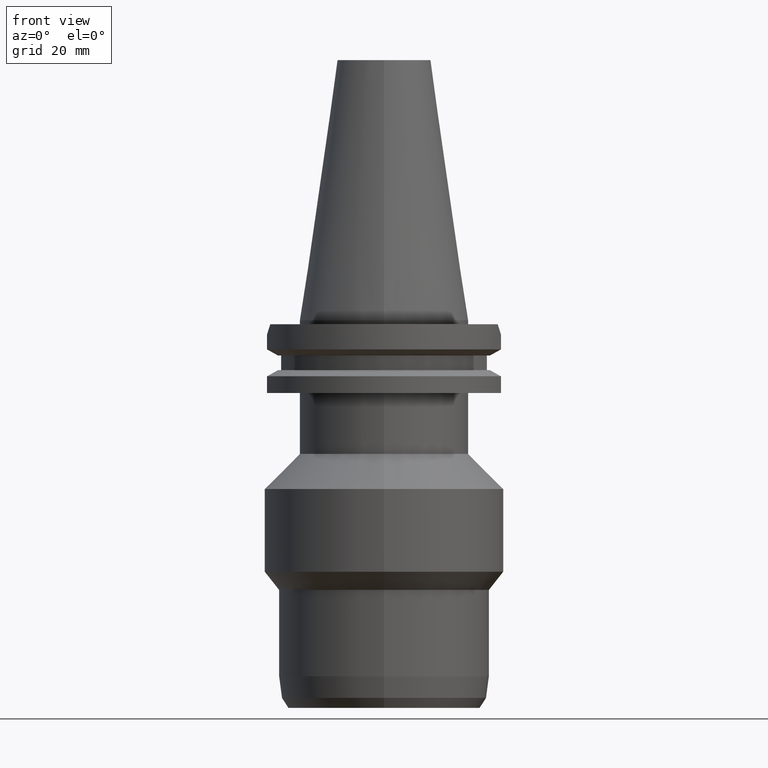
[diagram: clean part render]
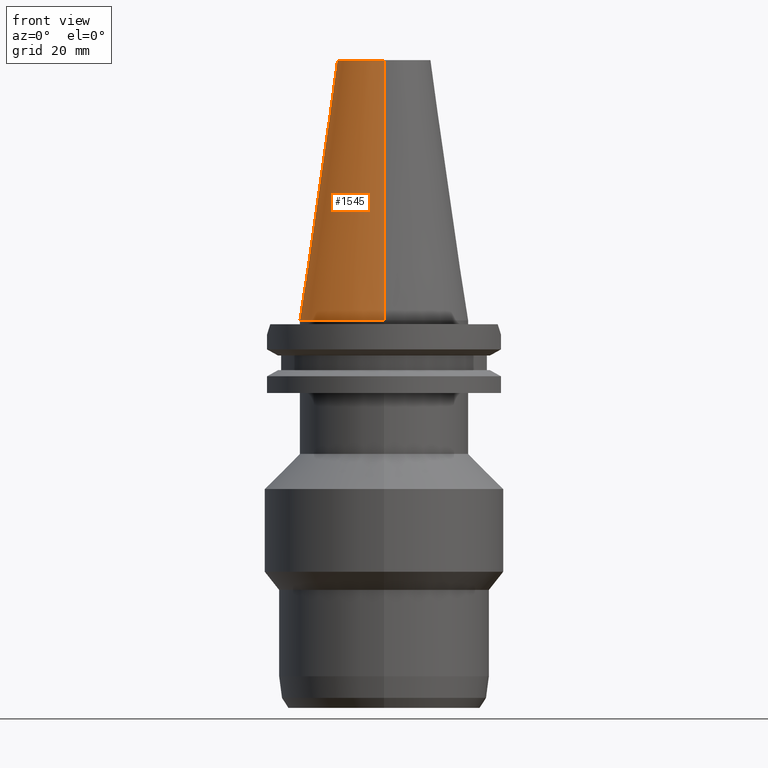
[diagram: same view with one face highlighted and labeled with its STEP entity id]
A machine part, front view. The second image highlights one B-rep face of the part: STEP entity #1545.
In plain terms, the highlighted conical surface has half-angle 8.297 deg.
Its self-contained STEP definition (entity closure, byte-faithful):
#17=DIRECTION('',(0.E0,1.443069799457E-1,-9.895329683942E-1));
#18=VECTOR('',#17,6.897193138573E1);
#19=CARTESIAN_POINT('',(0.E0,1.227186888070E1,6.825E1));
#20=LINE('',#19,#18);
#33=DIRECTION('',(0.E0,-1.443069799457E-1,-9.895329683942E-1));
#34=VECTOR('',#33,6.897193138573E1);
#35=CARTESIAN_POINT('',(0.E0,-1.227186888070E1,6.825E1));
#36=LINE('',#35,#34);
#40=CARTESIAN_POINT('',(0.E0,1.642557519356E-14,-3.126388037344E-13));
#41=DIRECTION('',(0.E0,0.E0,-1.E0));
#42=DIRECTION('',(0.E0,-1.E0,0.E0));
#43=AXIS2_PLACEMENT_3D('',#40,#41,#42);
#48=CARTESIAN_POINT('',(0.E0,1.642557519356E-14,6.825E1));
#49=DIRECTION('',(0.E0,0.E0,-1.E0));
#50=DIRECTION('',(0.E0,-1.E0,0.E0));
#51=AXIS2_PLACEMENT_3D('',#48,#49,#50);
#1302=CARTESIAN_POINT('',(0.E0,1.227186888070E1,6.825E1));
#1303=CARTESIAN_POINT('',(0.E0,2.2225E1,-2.131628207280E-13));
#1304=VERTEX_POINT('',#1302);
#1305=VERTEX_POINT('',#1303);
#1306=CARTESIAN_POINT('',(0.E0,-2.2225E1,-3.126388037344E-13));
#1307=VERTEX_POINT('',#1306);
#1308=CARTESIAN_POINT('',(0.E0,-1.227186888070E1,6.825E1));
#1309=VERTEX_POINT('',#1308);
#1532=CARTESIAN_POINT('',(0.E0,1.642557519356E-14,3.4125E1));
#1533=DIRECTION('',(0.E0,0.E0,-1.E0));
#1534=DIRECTION('',(0.E0,-1.E0,0.E0));
#1535=AXIS2_PLACEMENT_3D('',#1532,#1533,#1534);
#1536=CONICAL_SURFACE('',#1535,1.724843444035E1,8.29715E0);
#1537=ORIENTED_EDGE('',*,*,#1521,.F.);
#1539=ORIENTED_EDGE('',*,*,#1538,.F.);
#1540=ORIENTED_EDGE('',*,*,#1525,.T.);
#1542=ORIENTED_EDGE('',*,*,#1541,.T.);
#1543=EDGE_LOOP('',(#1537,#1539,#1540,#1542));
#1544=FACE_OUTER_BOUND('',#1543,.F.);
#44=CIRCLE('',#43,2.2225E1);
#52=CIRCLE('',#51,1.227186888070E1);
#1521=EDGE_CURVE('',#1304,#1305,#20,.T.);
#1525=EDGE_CURVE('',#1309,#1307,#36,.T.);
#1538=EDGE_CURVE('',#1309,#1304,#52,.T.);
#1541=EDGE_CURVE('',#1307,#1305,#44,.T.);
#1545=ADVANCED_FACE('',(#1544),#1536,.T.);